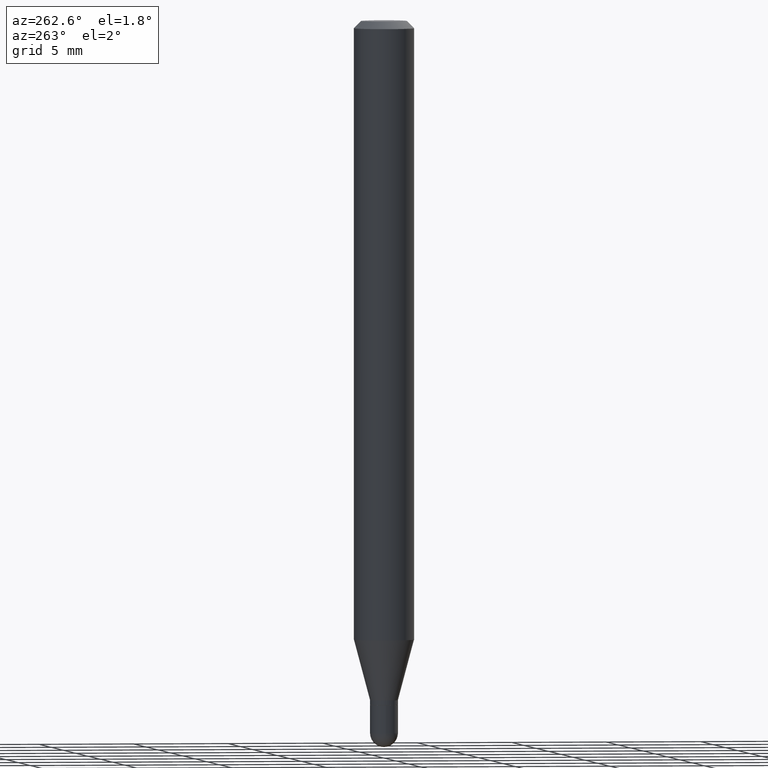
[diagram: clean part render]
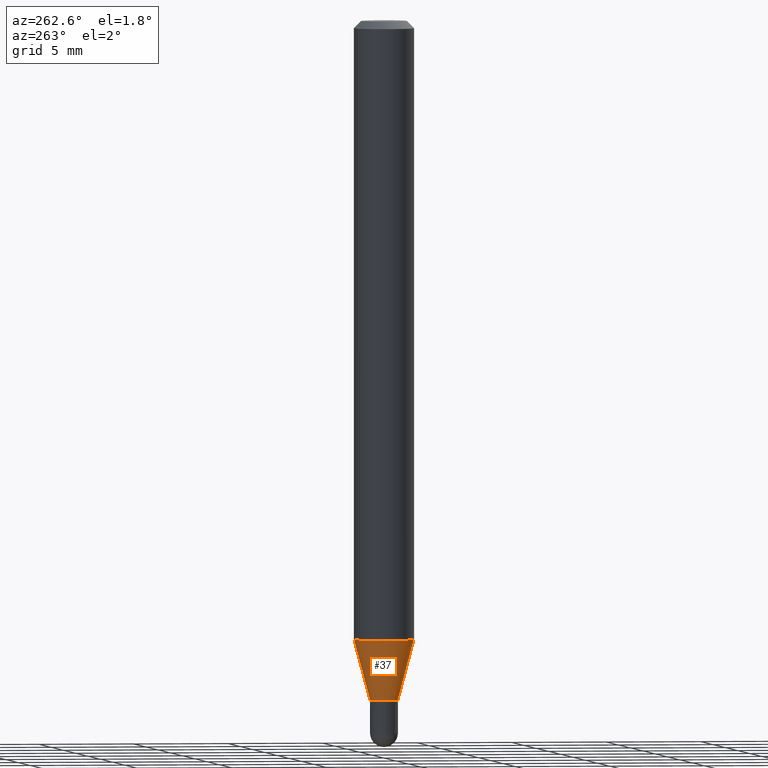
[diagram: same view with one face highlighted and labeled with its STEP entity id]
A machine part, auxiliary view. The second image highlights one B-rep face of the part: STEP entity #37.
In plain terms, the highlighted conical surface has half-angle 15 deg.
Its self-contained STEP definition (entity closure, byte-faithful):
#4 = CARTESIAN_POINT ( 'NONE',  ( 3.430983693992638216E-29, -4.898561265745397268E-15, -1.403000000000000247 ) ) ;
#37 = ADVANCED_FACE ( 'NONE', ( #362 ), #150, .T. ) ;
#48 = VERTEX_POINT ( 'NONE', #104 ) ;
#51 = DIRECTION ( 'NONE',  ( -2.445462362076006413E-29, 3.491490567174196263E-15, 1.000000000000000000 ) ) ;
#73 = VECTOR ( 'NONE', #422, 39.37007874015748854 ) ;
#89 = CARTESIAN_POINT ( 'NONE',  ( 3.430983693992638216E-29, -4.898561265745397268E-15, -1.403000000000000247 ) ) ;
#94 = VERTEX_POINT ( 'NONE', #383 ) ;
#104 = CARTESIAN_POINT ( 'NONE',  ( 3.250733016102783684E-16, 0.02899999999999502281, -1.403000000000000247 ) ) ;
#141 = AXIS2_PLACEMENT_3D ( 'NONE', #478, #51, #334 ) ;
#142 = VECTOR ( 'NONE', #398, 39.37007874015748143 ) ;
#150 = CONICAL_SURFACE ( 'NONE', #506, 0.02899999999999992514, 0.2617993877991505736 ) ;
#157 = CARTESIAN_POINT ( 'NONE',  ( -2.025059176528669025E-16, -0.02900000000000482400, -1.403000000000000247 ) ) ;
#162 = EDGE_CURVE ( 'NONE', #231, #502, #512, .T. ) ;
#220 = DIRECTION ( 'NONE',  ( -2.445462362076006413E-29, 3.491490567174196263E-15, 1.000000000000000000 ) ) ;
#231 = VERTEX_POINT ( 'NONE', #425 ) ;
#243 = EDGE_LOOP ( 'NONE', ( #437, #394, #365, #489 ) ) ;
#253 = AXIS2_PLACEMENT_3D ( 'NONE', #89, #404, #441 ) ;
#334 = DIRECTION ( 'NONE',  ( -6.982962677686265922E-15, -1.000000000000000000, 4.370956789862821150E-15 ) ) ;
#360 = CIRCLE ( 'NONE', #141, 0.06250000000000000000 ) ;
#362 = FACE_OUTER_BOUND ( 'NONE', #243, .T. ) ;
#365 = ORIENTED_EDGE ( 'NONE', *, *, #162, .T. ) ;
#368 = EDGE_CURVE ( 'NONE', #94, #502, #360, .T. ) ;
#383 = CARTESIAN_POINT ( 'NONE',  ( 4.440892098500935790E-16, 0.06249999999999551054, -1.277976297946443518 ) ) ;
#394 = ORIENTED_EDGE ( 'NONE', *, *, #396, .T. ) ;
#396 = EDGE_CURVE ( 'NONE', #48, #231, #488, .T. ) ;
#398 = DIRECTION ( 'NONE',  ( 1.839019923739602287E-15, 0.2588190451025252359, 0.9659258262890670910 ) ) ;
#404 = DIRECTION ( 'NONE',  ( -2.445462362076006413E-29, 3.491490567174196263E-15, 1.000000000000000000 ) ) ;
#409 = DIRECTION ( 'NONE',  ( -6.982962677686265922E-15, -1.000000000000000000, 0.000000000000000000 ) ) ;
#422 = DIRECTION ( 'NONE',  ( -1.807323732225332111E-15, -0.2588190451025184635, 0.9659258262890689783 ) ) ;
#425 = CARTESIAN_POINT ( 'NONE',  ( -2.025059176528669025E-16, -0.02900000000000482400, -1.403000000000000247 ) ) ;
#437 = ORIENTED_EDGE ( 'NONE', *, *, #493, .F. ) ;
#441 = DIRECTION ( 'NONE',  ( -6.982962677686265922E-15, -1.000000000000000000, 0.000000000000000000 ) ) ;
#442 = LINE ( 'NONE', #484, #142 ) ;
#448 = CARTESIAN_POINT ( 'NONE',  ( -4.364351673553605587E-16, -0.06250000000000449640, -1.277976297946442852 ) ) ;
#478 = CARTESIAN_POINT ( 'NONE',  ( 3.125242936253259023E-29, -4.462042189352206185E-15, -1.277976297946443296 ) ) ;
#484 = CARTESIAN_POINT ( 'NONE',  ( 2.060573933704627882E-16, 0.02899999999999502281, -1.403000000000000247 ) ) ;
#488 = CIRCLE ( 'NONE', #253, 0.02899999999999992514 ) ;
#489 = ORIENTED_EDGE ( 'NONE', *, *, #368, .F. ) ;
#493 = EDGE_CURVE ( 'NONE', #48, #94, #442, .T. ) ;
#502 = VERTEX_POINT ( 'NONE', #448 ) ;
#506 = AXIS2_PLACEMENT_3D ( 'NONE', #4, #220, #409 ) ;
#512 = LINE ( 'NONE', #157, #73 ) ;